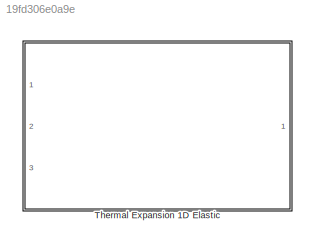
MODEL slx_19fd306e0a9e
KIND library
CONFIG AbsTol = auto
CONFIG FixedStep = auto
CONFIG MaxStep = auto
CONFIG MinStep = auto
CONFIG RelTol = 1e-3
CONFIG SampleTimeConstraint = Unconstrained
CONFIG Solver = ode45
CONFIG SolverMode = Auto
CONFIG SolverName = ode45
CONFIG StartTime = 0.0
CONFIG StopTime = 10.0
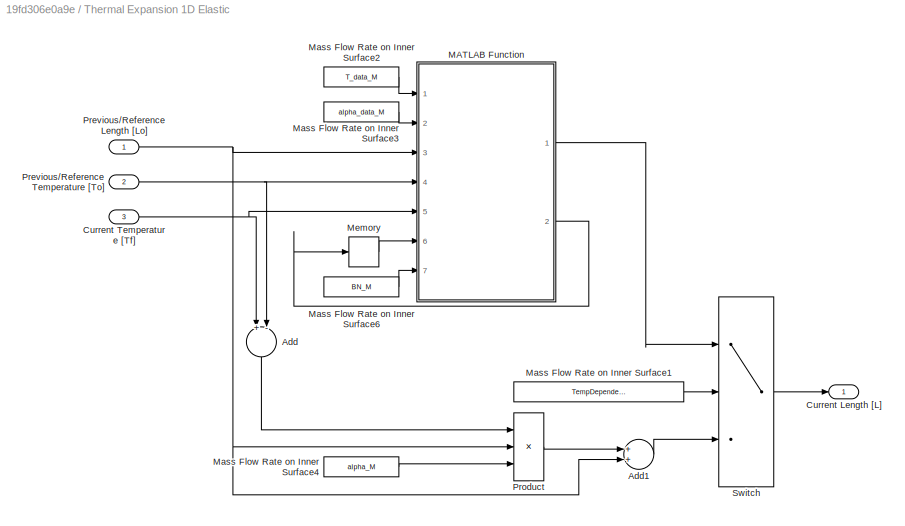
BLOCK [SubSystem] Thermal Expansion 1D Elastic
  Ports = [3, 1]
  RequestExecContextInheritance = off
BLOCK [Sum] Thermal Expansion 1D Elastic/Add
  InputSameDT = off
  Inputs = +-
  OutDataTypeStr = Inherit: Inherit via internal rule
  Ports = [2, 1]
  SaturateOnIntegerOverflow = off
BLOCK [Sum] Thermal Expansion 1D Elastic/Add1
  InputSameDT = off
  OutDataTypeStr = Inherit: Inherit via internal rule
  Ports = [2, 1]
  SaturateOnIntegerOverflow = off
BLOCK [Outport] Thermal Expansion 1D Elastic/Current Length [L]
  IconDisplay = Port number
BLOCK [Inport] Thermal Expansion 1D Elastic/Current Temperature [Tf]
  IconDisplay = Port number
  Port = 3
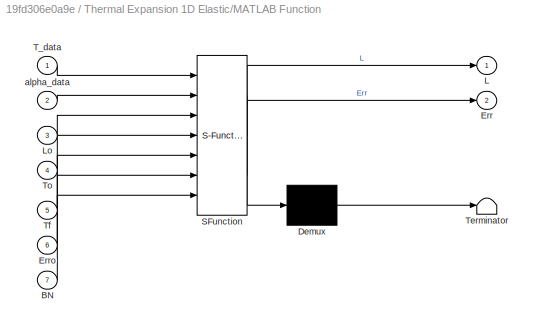
BLOCK [SubSystem] Thermal Expansion 1D Elastic/MATLAB Function
  ErrorFcn = Stateflow.Translate.translate
  PermitHierarchicalResolution = ExplicitOnly
  Ports = [7, 2]
  RequestExecContextInheritance = off
  SFBlockType = MATLAB Function
  TreatAsAtomicUnit = on
BLOCK [Demux] Thermal Expansion 1D Elastic/MATLAB Function/ Demux 
  Outputs = 1
  Ports = [1, 1]
BLOCK [S-Function] Thermal Expansion 1D Elastic/MATLAB Function/ SFunction 
  FunctionName = sf_sfun
  PortCounts = [7 3]
  Ports = [7, 3]
  Tag = Stateflow S-Function lib_Deformation_ThermExp1DElastic 2
BLOCK [Terminator] Thermal Expansion 1D Elastic/MATLAB Function/ Terminator 
BLOCK [Inport] Thermal Expansion 1D Elastic/MATLAB Function/BN
  IconDisplay = Port number
  Port = 7
BLOCK [Outport] Thermal Expansion 1D Elastic/MATLAB Function/Err
  IconDisplay = Port number
  Port = 2
BLOCK [Inport] Thermal Expansion 1D Elastic/MATLAB Function/Erro
  IconDisplay = Port number
  Port = 6
BLOCK [Outport] Thermal Expansion 1D Elastic/MATLAB Function/L
  IconDisplay = Port number
BLOCK [Inport] Thermal Expansion 1D Elastic/MATLAB Function/Lo
  IconDisplay = Port number
  Port = 3
BLOCK [Inport] Thermal Expansion 1D Elastic/MATLAB Function/T_data
  IconDisplay = Port number
BLOCK [Inport] Thermal Expansion 1D Elastic/MATLAB Function/Tf
  IconDisplay = Port number
  Port = 5
BLOCK [Inport] Thermal Expansion 1D Elastic/MATLAB Function/To
  IconDisplay = Port number
  Port = 4
BLOCK [Inport] Thermal Expansion 1D Elastic/MATLAB Function/alpha_data
  IconDisplay = Port number
  Port = 2
BLOCK [Constant] Thermal Expansion 1D Elastic/Mass Flow Rate on Inner Surface1
  Value = TempDependence_M
BLOCK [Constant] Thermal Expansion 1D Elastic/Mass Flow Rate on Inner Surface2
  Value = T_data_M
BLOCK [Constant] Thermal Expansion 1D Elastic/Mass Flow Rate on Inner Surface3
  Value = alpha_data_M
BLOCK [Constant] Thermal Expansion 1D Elastic/Mass Flow Rate on Inner Surface4
  Value = alpha_M
BLOCK [Constant] Thermal Expansion 1D Elastic/Mass Flow Rate on Inner Surface6
  Value = BN_M
BLOCK [Memory] Thermal Expansion 1D Elastic/Memory
  InheritSampleTime = on
  X0 = zeros(1,7)
BLOCK [Inport] Thermal Expansion 1D Elastic/Previous//Reference Length [Lo]
  IconDisplay = Port number
BLOCK [Inport] Thermal Expansion 1D Elastic/Previous//Reference Temperature [To]
  IconDisplay = Port number
  Port = 2
BLOCK [Product] Thermal Expansion 1D Elastic/Product
  InputSameDT = off
  Inputs = ***
  OutDataTypeStr = Inherit: Inherit via internal rule
  Ports = [3, 1]
  RndMeth = Floor
  SaturateOnIntegerOverflow = off
BLOCK [Switch] Thermal Expansion 1D Elastic/Switch
  Criteria = u2 > Threshold
  InputSameDT = off
  SaturateOnIntegerOverflow = off
LINE Thermal Expansion 1D Elastic/Add1:1 -> Thermal Expansion 1D Elastic/Switch:3
LINE Thermal Expansion 1D Elastic/Add:1 -> Thermal Expansion 1D Elastic/Product:1
NET Thermal Expansion 1D Elastic/Current Temperature [Tf]:1 -> Thermal Expansion 1D Elastic/Add:1, Thermal Expansion 1D Elastic/MATLAB Function:5
LINE Thermal Expansion 1D Elastic/MATLAB Function:1 -> Thermal Expansion 1D Elastic/Switch:1
LINE Thermal Expansion 1D Elastic/MATLAB Function:2 -> Thermal Expansion 1D Elastic/Memory:1
LINE Thermal Expansion 1D Elastic/Mass Flow Rate on Inner Surface1:1 -> Thermal Expansion 1D Elastic/Switch:2
LINE Thermal Expansion 1D Elastic/Mass Flow Rate on Inner Surface2:1 -> Thermal Expansion 1D Elastic/MATLAB Function:1
LINE Thermal Expansion 1D Elastic/Mass Flow Rate on Inner Surface3:1 -> Thermal Expansion 1D Elastic/MATLAB Function:2
LINE Thermal Expansion 1D Elastic/Mass Flow Rate on Inner Surface4:1 -> Thermal Expansion 1D Elastic/Product:3
LINE Thermal Expansion 1D Elastic/Mass Flow Rate on Inner Surface6:1 -> Thermal Expansion 1D Elastic/MATLAB Function:7
LINE Thermal Expansion 1D Elastic/Memory:1 -> Thermal Expansion 1D Elastic/MATLAB Function:6
NET Thermal Expansion 1D Elastic/Previous//Reference Length [Lo]:1 -> Thermal Expansion 1D Elastic/Add1:2, Thermal Expansion 1D Elastic/MATLAB Function:3, Thermal Expansion 1D Elastic/Product:2
NET Thermal Expansion 1D Elastic/Previous//Reference Temperature [To]:1 -> Thermal Expansion 1D Elastic/Add:2, Thermal Expansion 1D Elastic/MATLAB Function:4
LINE Thermal Expansion 1D Elastic/Product:1 -> Thermal Expansion 1D Elastic/Add1:1
LINE Thermal Expansion 1D Elastic/Switch:1 -> Thermal Expansion 1D Elastic/Current Length [L]:1
note: NET lines group one-source signal fan-out (src -> all destinations, sorted); 1:1 wires keep LINE
CHART Thermal Expansion 1D Elastic/MATLAB Function states=1 transitions=1
  STATE_LABEL 'eML_blk_kernel()'
  STATE_LABEL "SCRIPT:\nfunction [L,Err] = ThermalExpansion(T_data,alpha_data,Lo,To,Tf,Erro,BN)\n%#codegen\n\n% initialize error/warning array\nErr = Erro;\nErrNum = 1; %Error index\n\n% number of data points for interpolation and numerical integration\nn = 50;\n\n%check input sizes\nif length(T_data) < 2 && Erro(ErrNum) == 0\n    Err(ErrNum) = 1;\n    fprintf('warning in %s: The temperature data array (T_data) must be an arr...<+2484ch>"
